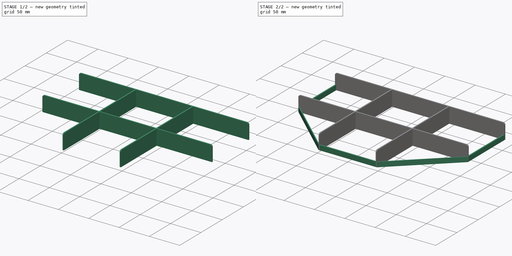
[diagram: build sequence overview — one tinted view per stage of 2, left to right]
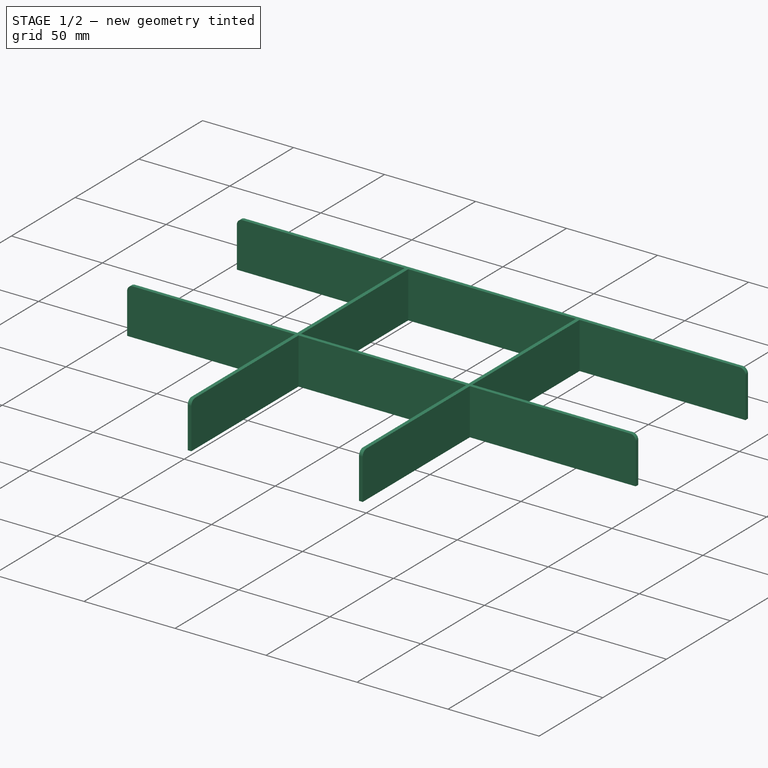
[diagram: stage 1 of 2 — iso view after this stage's code; geometry added in this stage tinted green]
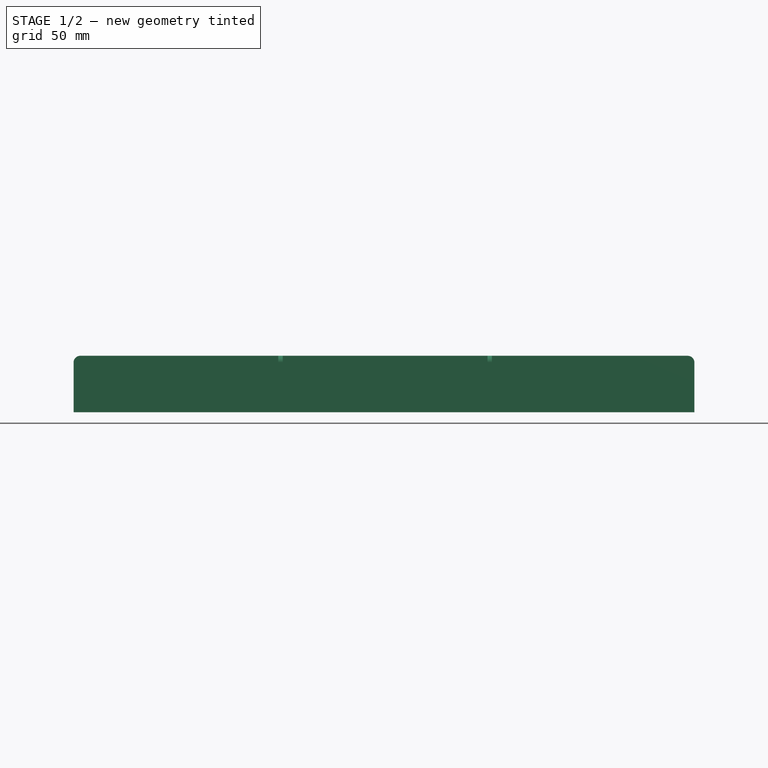
[diagram: stage 1 of 2 — front view after this stage's code; geometry added in this stage tinted green]
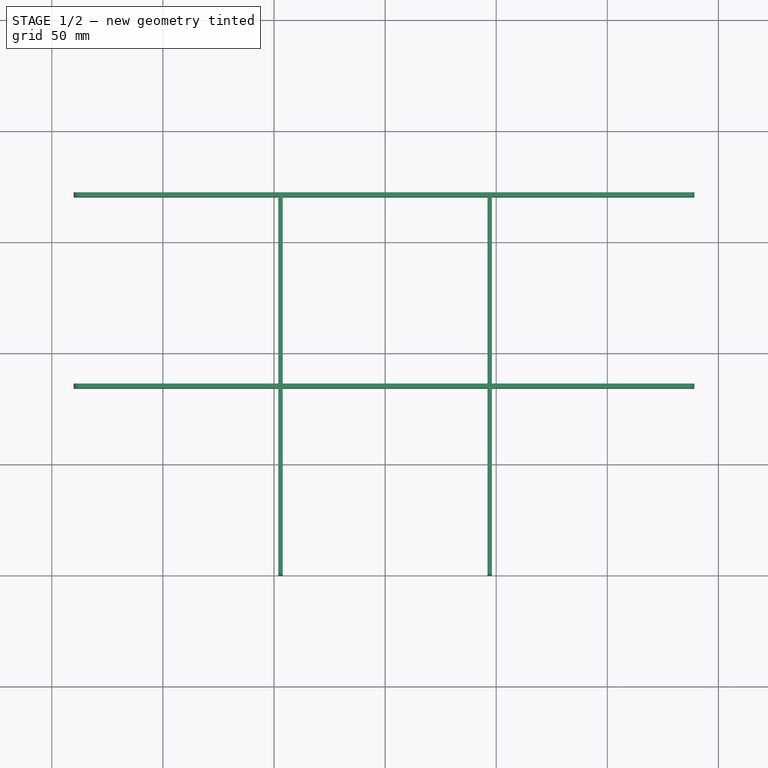
[diagram: stage 1 of 2 — top view after this stage's code; geometry added in this stage tinted green]
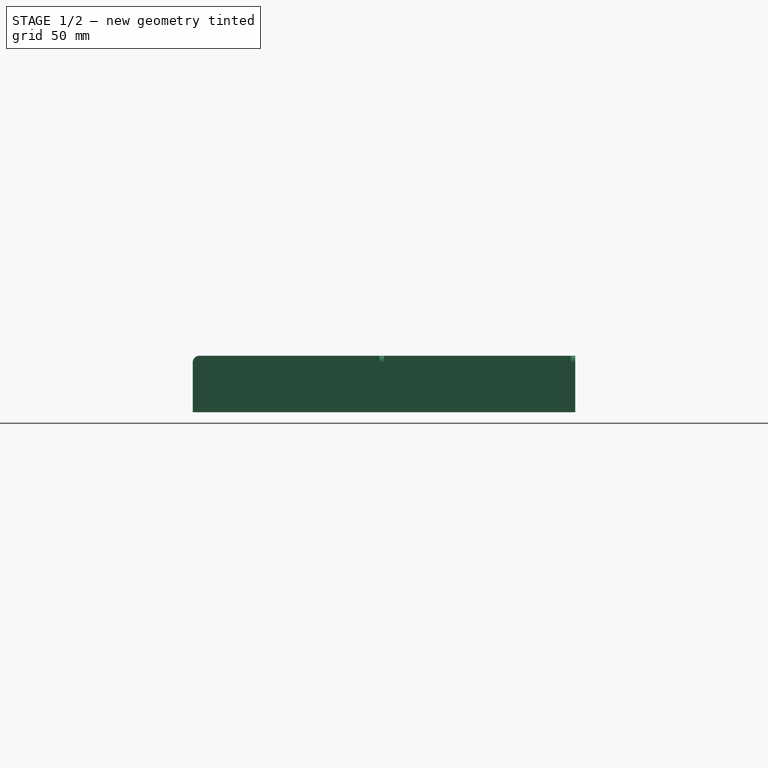
[diagram: stage 1 of 2 — right view after this stage's code; geometry added in this stage tinted green]
FCSTD DOCUMENT  (FreeCAD 0.21R33771 (Git))
Label: LasagnaGrid
License: All rights reserved
LicenseURL: http://en.wikipedia.org/wiki/All_rights_reserved
objects: Sketcher::SketchObject×2, PartDesign::Pad×2, Spreadsheet::Sheet×1, PartDesign::Fillet×1, PartDesign::Body×1, App::Part×1
note: 9 computed .brp shape members not serialized (recipe doc carries the construction recipe); baked Part::Feature solids carry a one-line shape summary decoded from their .brp

FEATURE [Spreadsheet::Sheet] Spreadsheet  label="p"
FEATURE [Sketcher::SketchObject] Sketch
  FullyConstrained = true
  MapMode = 5
  Support = -> [XY_Plane001]
  sketch-geometry (24):
    g0: LineSegment StartX=-140.2 StartY=86.09 StartZ=0 EndX=-48.0666 EndY=86.09 EndZ=0
    g1: LineSegment StartX=139.2 StartY=86.09 StartZ=0 EndX=139.2 EndY=84.09 EndZ=0
    g2: LineSegment StartX=139.2 StartY=84.09 StartZ=0 EndX=48.0667 EndY=84.09 EndZ=0
    g3: LineSegment StartX=48.0667 StartY=84.09 StartZ=0 EndX=48.0667 EndY=0 EndZ=0
    g4: LineSegment StartX=48.0667 StartY=0 StartZ=0 EndX=46.0667 EndY=0 EndZ=0
    g5: LineSegment StartX=46.0667 StartY=0 StartZ=0 EndX=46.0667 EndY=84.09 EndZ=0
    g6: LineSegment StartX=46.0667 StartY=84.09 StartZ=0 EndX=-46.0667 EndY=84.09 EndZ=0
    g7: LineSegment StartX=-46.0667 StartY=84.09 StartZ=0 EndX=-46.0667 EndY=0 EndZ=0
    g8: LineSegment StartX=-46.0667 StartY=0 StartZ=0 EndX=-48.0667 EndY=0 EndZ=0
    g9: LineSegment StartX=-48.0667 StartY=0 StartZ=0 EndX=-48.0667 EndY=84.09 EndZ=0
    g10: LineSegment StartX=-48.0667 StartY=84.09 StartZ=0 EndX=-140.2 EndY=84.09 EndZ=0
    g11: LineSegment StartX=-140.2 StartY=84.09 StartZ=0 EndX=-140.2 EndY=86.09 EndZ=0
    g12: LineSegment StartX=-48.0666 StartY=86.09 StartZ=0 EndX=-48.0666 EndY=170.18 EndZ=0
    g13: LineSegment StartX=-48.0666 StartY=170.18 StartZ=0 EndX=-140.2 EndY=170.18 EndZ=0
    g14: LineSegment StartX=-140.2 StartY=170.18 StartZ=0 EndX=-140.2 EndY=172.18 EndZ=0
    g15: LineSegment StartX=-140.2 StartY=172.18 StartZ=0 EndX=139.2 EndY=172.18 EndZ=0
    g16: LineSegment StartX=139.2 StartY=172.18 StartZ=0 EndX=139.2 EndY=170.18 EndZ=0
    g17: LineSegment StartX=139.2 StartY=170.18 StartZ=0 EndX=48.0667 EndY=170.18 EndZ=0
    g18: LineSegment StartX=48.0667 StartY=170.18 StartZ=0 EndX=48.0667 EndY=86.09 EndZ=0
    g19: LineSegment StartX=-46.0667 StartY=170.18 StartZ=0 EndX=-46.0667 EndY=86.09 EndZ=0
    g20: LineSegment StartX=48.0667 StartY=86.09 StartZ=0 EndX=139.2 EndY=86.09 EndZ=0
    g21: LineSegment StartX=-46.0667 StartY=86.09 StartZ=0 EndX=46.0667 EndY=86.09 EndZ=0
    g22: LineSegment StartX=46.0667 StartY=86.09 StartZ=0 EndX=46.0667 EndY=170.18 EndZ=0
    g23: LineSegment StartX=46.0667 StartY=170.18 StartZ=0 EndX=-46.0667 EndY=170.18 EndZ=0
  constraints (72):
    c: Horizontal(g0)
    c: Coincident(g20,g1)
    c: Vertical(g1)
    c: Coincident(g1,g2)
    c: Horizontal(g2)
    c: Coincident(g2,g3)
    c: Vertical(g3)
    c: Horizontal(g4)
    c: Coincident(g4,g5)
    c: Vertical(g5)
    c: Coincident(g5,g6)
    c: Horizontal(g6)
    c: Coincident(g6,g7)
    c: Vertical(g7)
    c: Coincident(g7,g8)
    c: Horizontal(g8)
    c: Coincident(g8,g9)
    c: Vertical(g9)
    c: Coincident(g9,g10)
    c: Horizontal(g10)
    c: Coincident(g10,g11)
    c: Coincident(g11,g0)
    c: Vertical(g11)
    c: DistanceX(g0,g20) = 279.4
    c: DistanceY(g11,g11) = 2
    c: DistanceY(g1,g1) = 2
    c: DistanceY(g6,g0) = 2
    c: DistanceX(g8,g8) = 2
    c: DistanceX(g4,g4) = 2
    c: DistanceY(g8,g10) = 84.09
    c: DistanceY(g4,g5) = 84.09
    c: DistanceY(g7,g-1) = 0
    c: Coincident(g4,g3)
    c: DistanceX(g10,g8) = 92.1333
    c: DistanceX(g7,g-1) = 46.0667
    c: DistanceX(g-1,g4) = 46.0667
    c: Vertical(g12)
    c: Coincident(g12,g13)
    c: Horizontal(g13)
    c: Coincident(g13,g14)
    c: Vertical(g14)
    c: Coincident(g14,g15)
    c: Horizontal(g15)
    c: Coincident(g15,g16)
    c: Vertical(g16)
    c: Coincident(g16,g17)
    c: Horizontal(g17)
    c: Coincident(g17,g18)
    c: PointOnObject(g18,g0)
    c: Vertical(g18)
    c: Vertical(g19)
    c: Coincident(g0,g12)
    c: DistanceX(g15,g15) = 279.4
    c: DistanceX(g0,g0) = 92.1333
    c: DistanceX(g19,g-1) = 46.0667
    c: DistanceY(g14,g14) = 2
    c: DistanceY(g19,g12) = 0
    c: DistanceY(g16,g16) = 2
    c: DistanceY(g3,g3) = 84.09
    c: DistanceY(g19,g19) = 84.09
    c: Coincident(g20,g18)
    c: Coincident(g19,g21)
    c: Horizontal(g21)
    c: Coincident(g21,g22)
    c: Vertical(g22)
    c: Coincident(g22,g23)
    c: Coincident(g23,g19)
    c: Horizontal(g23)
    c: DistanceY(g6,g19) = 2
    c: DistanceX(g22,g17) = 2
    c: DistanceX(g-1,g21) = 46.0667
    c: DistanceX(g0,g13) = 0
FEATURE [PartDesign::Pad] Pad
  Direction = (0,0,1)
  Length = 25.4
  Length2 = 10
  Profile = -> Sketch
  ReferenceAxis = -> Sketch [N_Axis]
  Type = 0
FEATURE [PartDesign::Fillet] Fillet
  Base = -> Pad [Edge52,Edge40,Edge19,Edge31,Edge60,Edge13]
  BaseFeature = -> Pad
  Radius = 3
  SupportTransform = false
  UseAllEdges = false
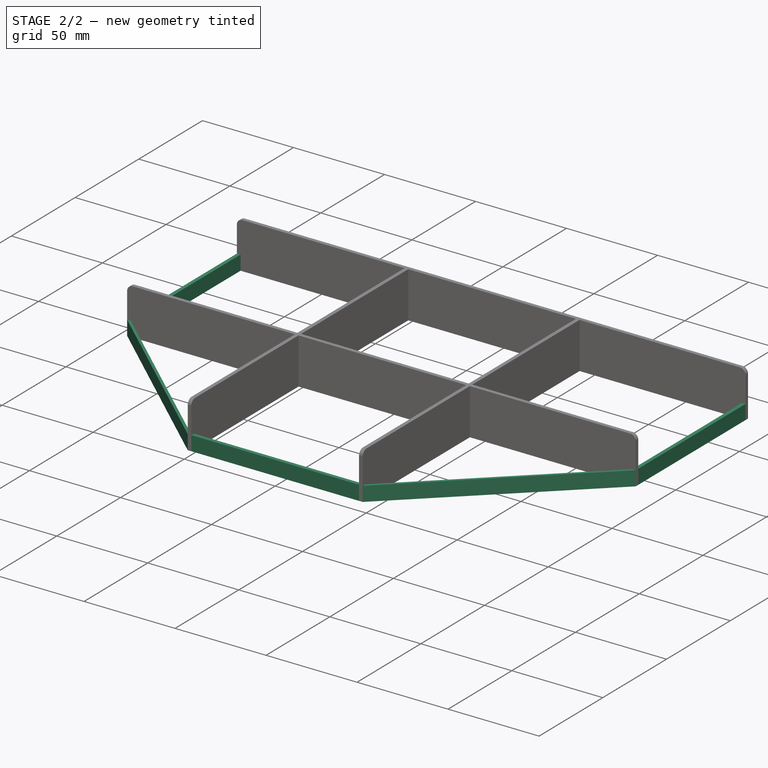
[diagram: stage 2 of 2 — iso view after this stage's code; geometry added in this stage tinted green]
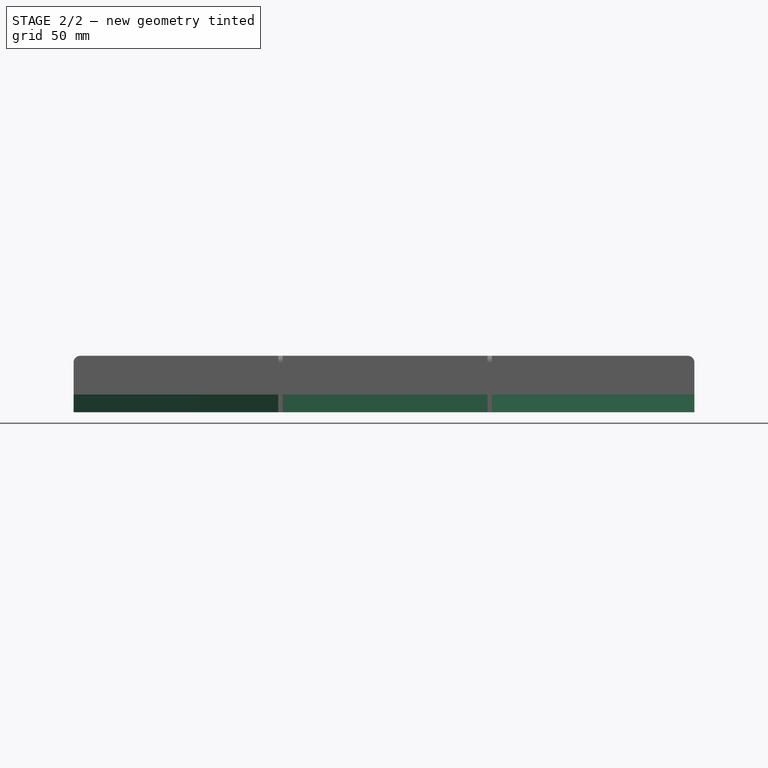
[diagram: stage 2 of 2 — front view after this stage's code; geometry added in this stage tinted green]
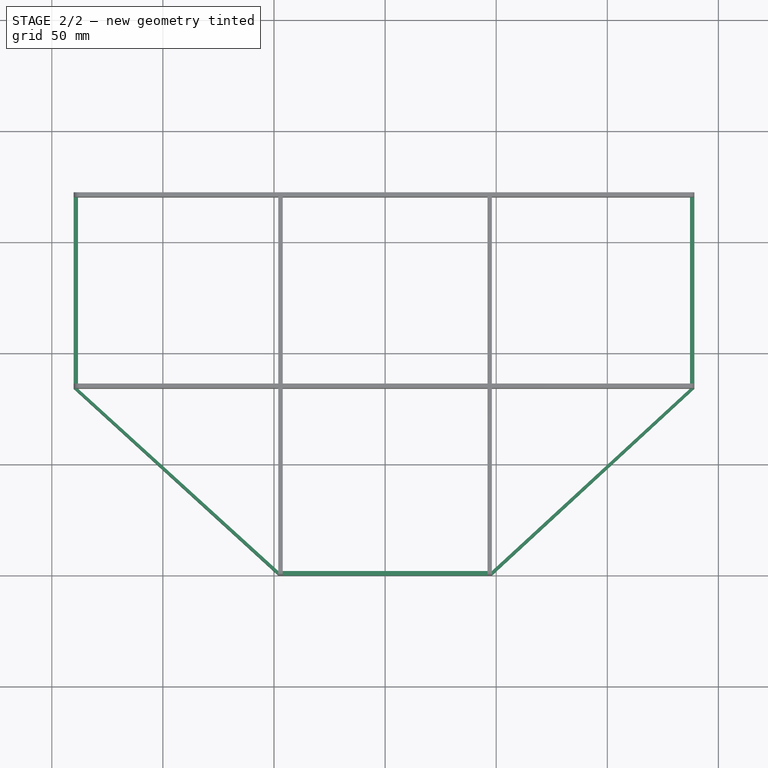
[diagram: stage 2 of 2 — top view after this stage's code; geometry added in this stage tinted green]
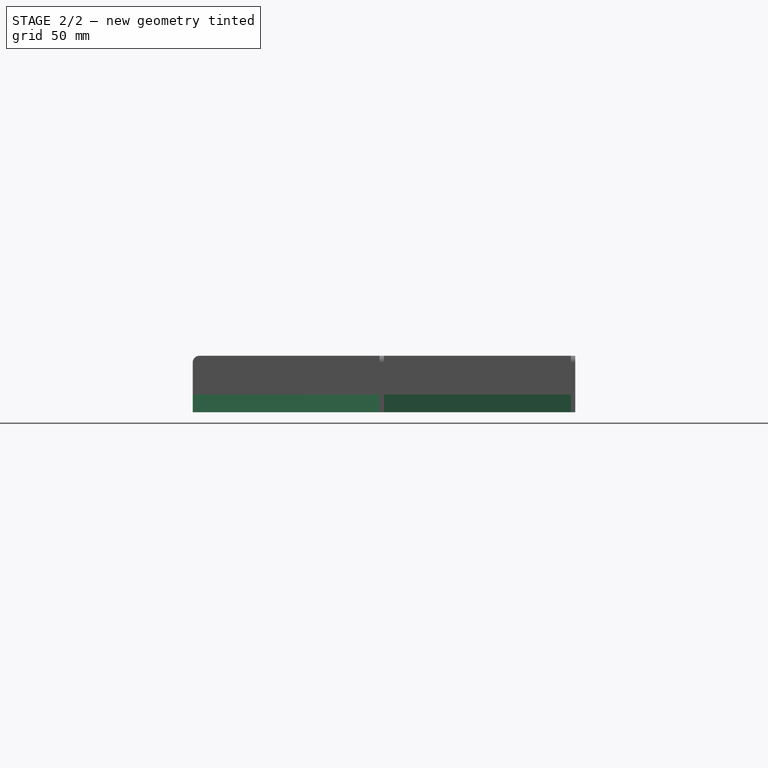
[diagram: stage 2 of 2 — right view after this stage's code; geometry added in this stage tinted green]
FEATURE [Sketcher::SketchObject] Sketch001
  FullyConstrained = true
  MapMode = 5
  Support = -> [XY_Plane001]
  sketch-geometry (34):
    g0: LineSegment StartX=-138.2 StartY=86.09 StartZ=0 EndX=-48.0666 EndY=86.09 EndZ=0
    g1: LineSegment StartX=139.2 StartY=86.09 StartZ=0 EndX=139.2 EndY=84.09 EndZ=0
    g2: LineSegment StartX=137.2 StartY=84.09 StartZ=0 EndX=48.0667 EndY=84.09 EndZ=0
    g3: LineSegment StartX=48.0667 StartY=84.09 StartZ=0 EndX=48.0667 EndY=2 EndZ=0
    g4: LineSegment StartX=48.0667 StartY=-7e-16 StartZ=0 EndX=46.0667 EndY=-7e-16 EndZ=0
    g5: LineSegment StartX=46.0667 StartY=2 StartZ=0 EndX=46.0667 EndY=84.09 EndZ=0
    g6: LineSegment StartX=46.0667 StartY=84.09 StartZ=0 EndX=-46.0667 EndY=84.09 EndZ=0
    g7: LineSegment StartX=-46.0667 StartY=84.09 StartZ=0 EndX=-46.0667 EndY=2 EndZ=0
    g8: LineSegment StartX=-46.0667 StartY=0 StartZ=0 EndX=-48.0667 EndY=0 EndZ=0
    g9: LineSegment StartX=-48.0667 StartY=2 StartZ=0 EndX=-48.0667 EndY=84.09 EndZ=0
    g10: LineSegment StartX=-48.0667 StartY=84.09 StartZ=0 EndX=-138.2 EndY=84.09 EndZ=0
    g11: LineSegment StartX=-140.2 StartY=84.09 StartZ=0 EndX=-140.2 EndY=86.09 EndZ=0
    g12: LineSegment StartX=-48.0666 StartY=86.09 StartZ=0 EndX=-48.0666 EndY=170.18 EndZ=0
    g13: LineSegment StartX=-48.0666 StartY=170.18 StartZ=0 EndX=-138.2 EndY=170.18 EndZ=0
    g14: LineSegment StartX=-140.2 StartY=170.18 StartZ=0 EndX=-140.2 EndY=172.18 EndZ=0
    g15: LineSegment StartX=-140.2 StartY=172.18 StartZ=0 EndX=139.2 EndY=172.18 EndZ=0
    g16: LineSegment StartX=139.2 StartY=172.18 StartZ=0 EndX=139.2 EndY=170.18 EndZ=0
    g17: LineSegment StartX=137.2 StartY=170.18 StartZ=0 EndX=48.0667 EndY=170.18 EndZ=0
    g18: LineSegment StartX=48.0667 StartY=170.18 StartZ=0 EndX=48.0667 EndY=86.09 EndZ=0
    g19: LineSegment StartX=-46.0667 StartY=170.18 StartZ=0 EndX=-46.0667 EndY=86.09 EndZ=0
    g20: LineSegment StartX=48.0667 StartY=86.09 StartZ=0 EndX=137.2 EndY=86.09 EndZ=0
    g21: LineSegment StartX=-46.0667 StartY=86.09 StartZ=0 EndX=46.0667 EndY=86.09 EndZ=0
    g22: LineSegment StartX=46.0667 StartY=86.09 StartZ=0 EndX=46.0667 EndY=170.18 EndZ=0
    g23: LineSegment StartX=46.0667 StartY=170.18 StartZ=0 EndX=-46.0667 EndY=170.18 EndZ=0
    g24: LineSegment StartX=-140.2 StartY=170.18 StartZ=0 EndX=-140.2 EndY=86.09 EndZ=0
    g25: LineSegment StartX=-138.2 StartY=170.18 StartZ=0 EndX=-138.2 EndY=86.09 EndZ=0
    g26: LineSegment StartX=-140.2 StartY=84.09 StartZ=0 EndX=-48.0667 EndY=0 EndZ=0
    g27: LineSegment StartX=-48.0667 StartY=2 StartZ=0 EndX=-138.2 EndY=84.09 EndZ=0
    g28: LineSegment StartX=-46.0667 StartY=0 StartZ=0 EndX=46.0667 EndY=-7e-16 EndZ=0
    g29: LineSegment StartX=46.0667 StartY=2 StartZ=0 EndX=-46.0667 EndY=2 EndZ=0
    g30: LineSegment StartX=48.0667 StartY=-7e-16 StartZ=0 EndX=139.2 EndY=84.09 EndZ=0
    g31: LineSegment StartX=137.2 StartY=84.09 StartZ=0 EndX=48.0667 EndY=2 EndZ=0
    g32: LineSegment StartX=139.2 StartY=86.09 StartZ=0 EndX=139.2 EndY=170.18 EndZ=0
    g33: LineSegment StartX=137.2 StartY=170.18 StartZ=0 EndX=137.2 EndY=86.09 EndZ=0
  constraints (102):
    c: Horizontal(g0)
    c: Vertical(g1)
    c: Horizontal(g2)
    c: Coincident(g2,g3)
    c: Vertical(g3)
    c: Horizontal(g4)
    c: Vertical(g5)
    c: Coincident(g5,g6)
    c: Horizontal(g6)
    c: Coincident(g6,g7)
    c: Vertical(g7)
    c: Horizontal(g8)
    c: Vertical(g9)
    c: Coincident(g9,g10)
    c: Horizontal(g10)
    c: Vertical(g11)
    c: DistanceX(g11,g1) = 279.4
    c: DistanceY(g11,g11) = 2
    c: DistanceY(g1,g1) = 2
    c: DistanceY(g6,g11) = 2
    c: DistanceX(g8,g8) = 2
    c: DistanceX(g4,g4) = 2
    c: DistanceY(g8,g11) = 84.09
    c: DistanceY(g4,g5) = 84.09
    c: DistanceY(g8,g-1) = 0
    c: DistanceX(g11,g8) = 92.1333
    c: DistanceX(g8,g-1) = 46.0667
    c: DistanceX(g-1,g4) = 46.0667
    c: Vertical(g12)
    c: Coincident(g12,g13)
    c: Horizontal(g13)
    c: Vertical(g14)
    c: Coincident(g14,g15)
    c: Horizontal(g15)
    c: Coincident(g15,g16)
    c: Vertical(g16)
    c: Horizontal(g17)
    c: Coincident(g17,g18)
    c: PointOnObject(g18,g0)
    c: Vertical(g18)
    c: Vertical(g19)
    c: Coincident(g0,g12)
    c: DistanceX(g15,g15) = 279.4
    c: DistanceX(g11,g0) = 92.1333
    c: DistanceX(g19,g-1) = 46.0667
    c: DistanceY(g14,g14) = 2
    c: DistanceY(g19,g12) = 0
    c: DistanceY(g16,g16) = 2
    c: DistanceY(g4,g3) = 84.09
    c: DistanceY(g19,g19) = 84.09
    c: Coincident(g20,g18)
    c: Coincident(g19,g21)
    c: Horizontal(g21)
    c: Coincident(g21,g22)
    c: Vertical(g22)
    c: Coincident(g22,g23)
    c: Coincident(g23,g19)
    c: Horizontal(g23)
    c: DistanceY(g6,g19) = 2
    c: DistanceX(g22,g17) = 2
    c: DistanceX(g-1,g21) = 46.0667
    c: DistanceX(g11,g14) = 0
    c: Coincident(g24,g14)
    c: Coincident(g24,g11)
    c: Vertical(g25)
    c: Coincident(g0,g25)
    c: Coincident(g13,g25)
    c: Coincident(g26,g11)
    c: Coincident(g26,g8)
    c: Coincident(g28,g8)
    c: Coincident(g28,g4)
    c: Horizontal(g29)
    c: Coincident(g30,g4)
    c: Coincident(g30,g1)
    c: Coincident(g32,g1)
    c: Coincident(g32,g16)
    c: Vertical(g33)
    c: Coincident(g10,g27)
    c: Coincident(g9,g27)
    c: Coincident(g7,g29)
    c: Coincident(g5,g29)
    c: Coincident(g3,g31)
    c: Coincident(g2,g31)
    c: Coincident(g20,g33)
    c: Coincident(g17,g33)
    c: DistanceX(g14,g13) = 2
    c: DistanceX(g11,g10) = 2
    c: DistanceX(g9,g7) = 2
    c: DistanceY(g8,g9) = 2
    c: DistanceY(g4,g3) = 2
    c: DistanceX(g2,g1) = 2
    c: DistanceX(g20,g1) = 2
    c: DistanceY(g17,g15) = 2
    c: DistanceY(g22,g17) = 0
    c: DistanceY(g2,g18) = 2
    c: DistanceY(g2,g20) = 2
    c: DistanceX(g19,g6) = 0
    c: DistanceY(g9,g0) = 2
    c: DistanceY(g8,g7) = 2
    c: DistanceX(g5,g2) = 2
    c: DistanceX(g5,g4) = 0
    c: DistanceY(g1,g2) = 0
FEATURE [PartDesign::Pad] Pad001
  BaseFeature = -> Fillet
  Direction = (0,0,1)
  Length = 8
  Length2 = 10
  Profile = -> Sketch001
  ReferenceAxis = -> Sketch001 [N_Axis]
  Type = 0
FEATURE [PartDesign::Body] Body  label="CutterBody"
  Group = -> [Sketch,Pad,Fillet,Sketch001,Pad001]
  Origin = -> Origin001
  Tip = -> Pad001
FEATURE [App::Part] Part  label="CutterPart"
  Group = -> [Body]
  Origin = -> Origin
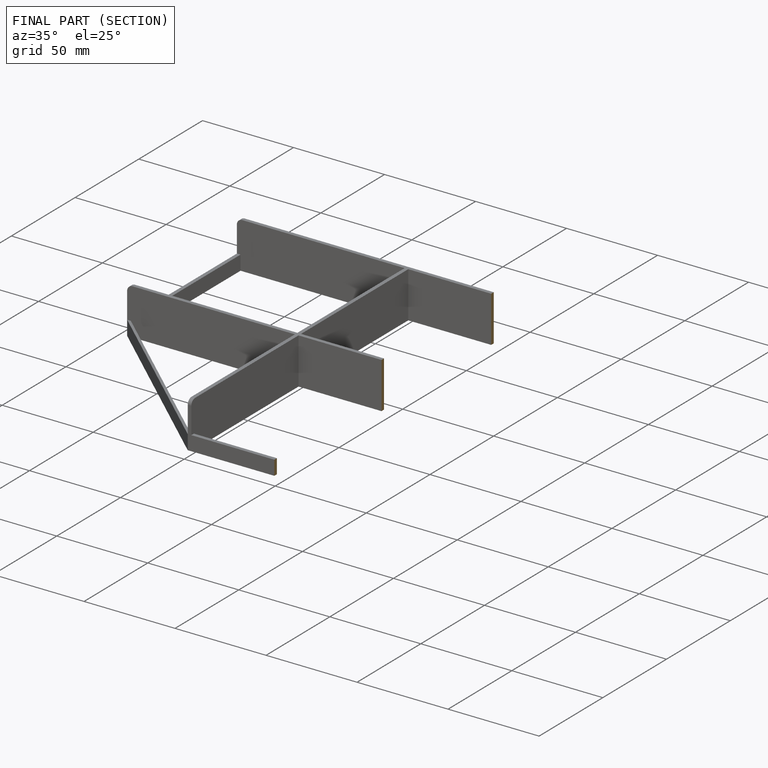
[diagram: finished part — half-section view (interior)]
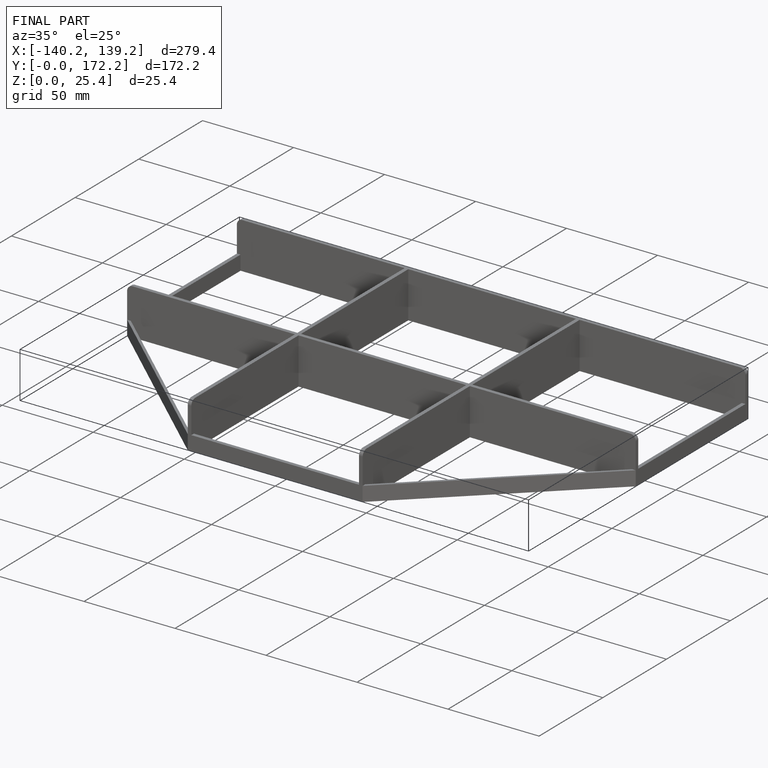
[diagram: finished part — iso view with bounding-box wireframe]
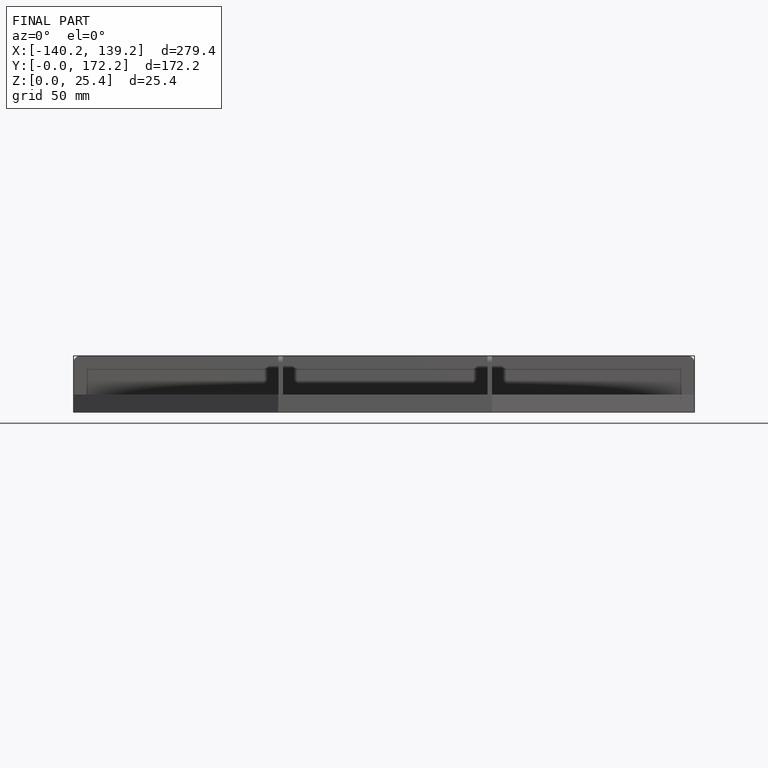
[diagram: finished part — front view with bounding-box wireframe]
